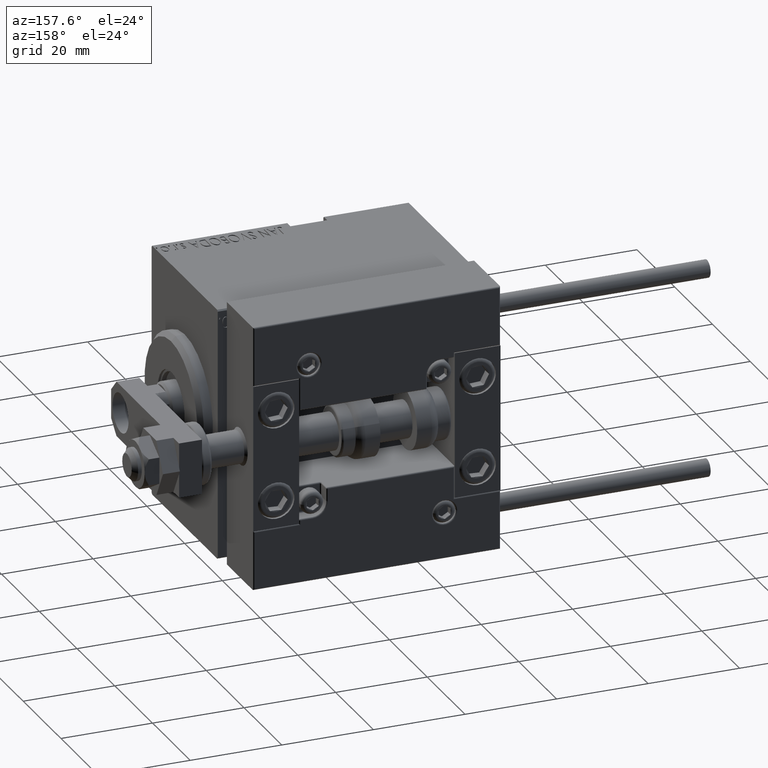
[diagram: clean part render]
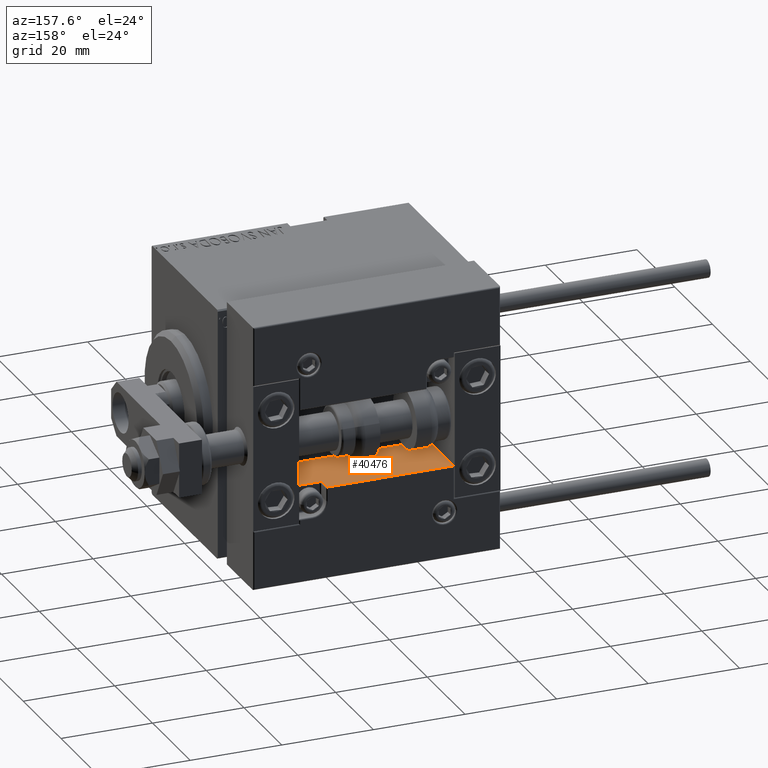
[diagram: same view with one face highlighted and labeled with its STEP entity id]
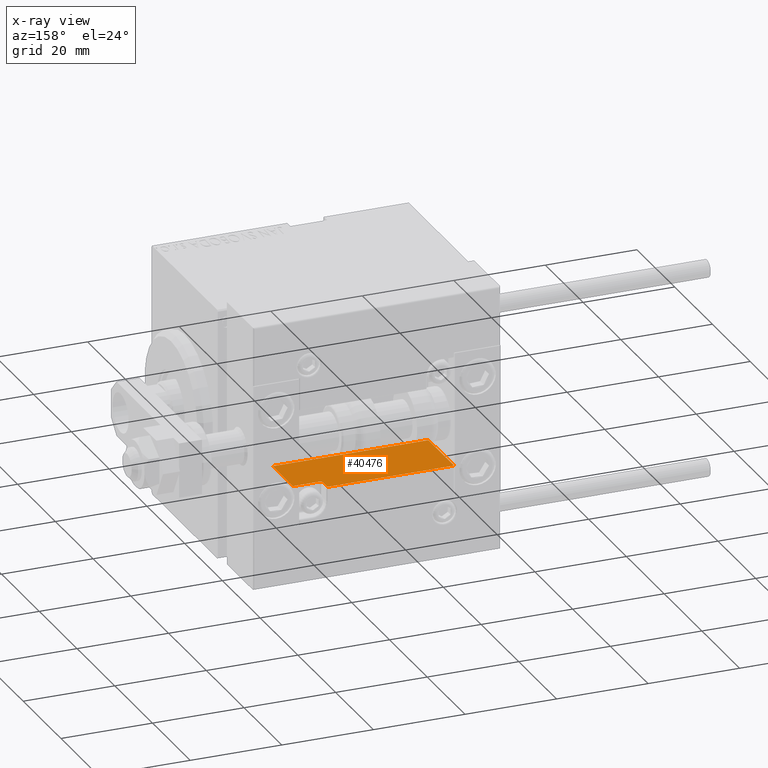
[diagram: x-ray of the same camera — body ghosted, the highlighted face saturated]
A machine part, auxiliary view. The second image highlights one B-rep face of the part: STEP entity #40476.
The next image is the same camera in x-ray: the body ghosted, the highlighted face saturated — about 0% of this face is hidden behind the body in this view.
In plain terms, the highlighted planar face has unit normal (0, 0, -1).
Its self-contained STEP definition (entity closure, byte-faithful):
#1806 = VECTOR ( 'NONE', #6518, 1000.000000000000000 ) ;
#1906 = DIRECTION ( 'NONE',  ( 0.000000000000000000, 1.000000000000000000, 0.000000000000000000 ) ) ;
#2160 = DIRECTION ( 'NONE',  ( 0.000000000000000000, -0.000000000000000000, 1.000000000000000000 ) ) ;
#2263 = DIRECTION ( 'NONE',  ( 1.000000000000000000, 0.000000000000000000, 0.000000000000000000 ) ) ;
#2760 = ORIENTED_EDGE ( 'NONE', *, *, #41453, .T. ) ;
#2810 = VERTEX_POINT ( 'NONE', #21697 ) ;
#3369 = VERTEX_POINT ( 'NONE', #32741 ) ;
#4311 = VERTEX_POINT ( 'NONE', #23651 ) ;
#4525 = EDGE_LOOP ( 'NONE', ( #19405, #13499, #44185, #2760, #48496, #20968, #28226 ) ) ;
#5078 = EDGE_CURVE ( 'NONE', #40596, #3369, #9373, .T. ) ;
#6518 = DIRECTION ( 'NONE',  ( -1.000000000000000000, 0.000000000000000000, -0.000000000000000000 ) ) ;
#7000 = LINE ( 'NONE', #10791, #48398 ) ;
#7226 = CARTESIAN_POINT ( 'NONE',  ( 11.00000000000000000, 3.252606517456513302E-15, 10.69999999999999929 ) ) ;
#8915 = VECTOR ( 'NONE', #26190, 1000.000000000000000 ) ;
#9373 = LINE ( 'NONE', #17695, #17749 ) ;
#9477 = EDGE_CURVE ( 'NONE', #25032, #27238, #34273, .T. ) ;
#9783 = CARTESIAN_POINT ( 'NONE',  ( 11.29999999999999893, 3.252606517456513302E-15, 11.29999999999999893 ) ) ;
#10791 = CARTESIAN_POINT ( 'NONE',  ( 16.99999999999999289, 3.252606517456513302E-15, 14.00000000000000000 ) ) ;
#10835 = AXIS2_PLACEMENT_3D ( 'NONE', #9783, #47429, #40614 ) ;
#12221 = LINE ( 'NONE', #43534, #33751 ) ;
#13030 = PLANE ( 'NONE',  #27257 ) ;
#13358 = EDGE_CURVE ( 'NONE', #4311, #40596, #34072, .T. ) ;
#13499 = ORIENTED_EDGE ( 'NONE', *, *, #9477, .T. ) ;
#14105 = CARTESIAN_POINT ( 'NONE',  ( -16.99999999999999289, 3.252606517456513302E-15, 13.70000000000000107 ) ) ;
#16805 = CARTESIAN_POINT ( 'NONE',  ( 16.99999999999999289, 3.252606517456513302E-15, 0.000000000000000000 ) ) ;
#17056 = CARTESIAN_POINT ( 'NONE',  ( -16.99999999999999289, 3.252606517456513302E-15, 14.00000000000000000 ) ) ;
#17695 = CARTESIAN_POINT ( 'NONE',  ( -16.99999999999999289, 3.252606517456513302E-15, 14.00000000000000000 ) ) ;
#17749 = VECTOR ( 'NONE', #32633, 1000.000000000000000 ) ;
#19405 = ORIENTED_EDGE ( 'NONE', *, *, #48740, .F. ) ;
#20968 = ORIENTED_EDGE ( 'NONE', *, *, #5078, .T. ) ;
#21312 = CIRCLE ( 'NONE', #10835, 0.5999999999999998668 ) ;
#21697 = CARTESIAN_POINT ( 'NONE',  ( 10.70000000000000107, 3.252606517456513302E-15, 11.29999999999999893 ) ) ;
#22895 = DIRECTION ( 'NONE',  ( -0.000000000000000000, -0.000000000000000000, -1.000000000000000000 ) ) ;
#23651 = CARTESIAN_POINT ( 'NONE',  ( 10.70000000000000107, 3.252606517456513302E-15, 13.70000000000000107 ) ) ;
#23714 = EDGE_CURVE ( 'NONE', #3369, #49734, #37144, .T. ) ;
#25032 = VERTEX_POINT ( 'NONE', #32409 ) ;
#26190 = DIRECTION ( 'NONE',  ( -1.000000000000000000, 0.000000000000000000, -0.000000000000000000 ) ) ;
#27238 = VERTEX_POINT ( 'NONE', #45217 ) ;
#27257 = AXIS2_PLACEMENT_3D ( 'NONE', #17056, #1906, #2160 ) ;
#28226 = ORIENTED_EDGE ( 'NONE', *, *, #23714, .T. ) ;
#28704 = CARTESIAN_POINT ( 'NONE',  ( -16.99999999999999289, 3.252606517456513302E-15, 13.70000000000000107 ) ) ;
#28957 = FACE_OUTER_BOUND ( 'NONE', #4525, .T. ) ;
#32409 = CARTESIAN_POINT ( 'NONE',  ( 16.99999999999999289, 3.252606517456513302E-15, 10.69999999999999929 ) ) ;
#32633 = DIRECTION ( 'NONE',  ( -0.000000000000000000, -0.000000000000000000, -1.000000000000000000 ) ) ;
#32741 = CARTESIAN_POINT ( 'NONE',  ( -16.99999999999999289, 3.252606517456513302E-15, 0.000000000000000000 ) ) ;
#32794 = EDGE_CURVE ( 'NONE', #2810, #27238, #21312, .T. ) ;
#33751 = VECTOR ( 'NONE', #39009, 1000.000000000000000 ) ;
#34072 = LINE ( 'NONE', #14105, #1806 ) ;
#34273 = LINE ( 'NONE', #7226, #8915 ) ;
#36888 = CARTESIAN_POINT ( 'NONE',  ( -16.99999999999999289, 3.252606517456513302E-15, 0.000000000000000000 ) ) ;
#37144 = LINE ( 'NONE', #36888, #48831 ) ;
#39009 = DIRECTION ( 'NONE',  ( 0.000000000000000000, -0.000000000000000000, 1.000000000000000000 ) ) ;
#40476 = ADVANCED_FACE ( 'NONE', ( #28957 ), #13030, .F. ) ;
#40596 = VERTEX_POINT ( 'NONE', #28704 ) ;
#40614 = DIRECTION ( 'NONE',  ( 0.000000000000000000, 0.000000000000000000, 1.000000000000000000 ) ) ;
#41453 = EDGE_CURVE ( 'NONE', #2810, #4311, #12221, .T. ) ;
#43534 = CARTESIAN_POINT ( 'NONE',  ( 10.70000000000000107, 3.252606517456513302E-15, 14.00000000000000000 ) ) ;
#44185 = ORIENTED_EDGE ( 'NONE', *, *, #32794, .F. ) ;
#45217 = CARTESIAN_POINT ( 'NONE',  ( 11.29999999999999893, 3.252606517456513302E-15, 10.69999999999999929 ) ) ;
#47429 = DIRECTION ( 'NONE',  ( -0.000000000000000000, -1.000000000000000000, -0.000000000000000000 ) ) ;
#48398 = VECTOR ( 'NONE', #22895, 1000.000000000000000 ) ;
#48496 = ORIENTED_EDGE ( 'NONE', *, *, #13358, .T. ) ;
#48740 = EDGE_CURVE ( 'NONE', #25032, #49734, #7000, .T. ) ;
#48831 = VECTOR ( 'NONE', #2263, 1000.000000000000000 ) ;
#49734 = VERTEX_POINT ( 'NONE', #16805 ) ;